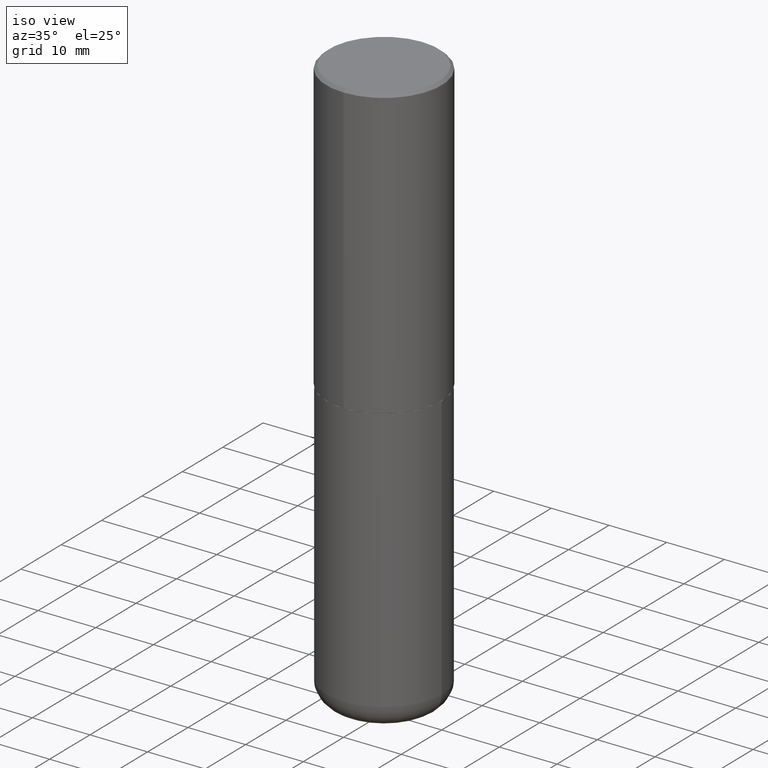
[diagram: clean part render]
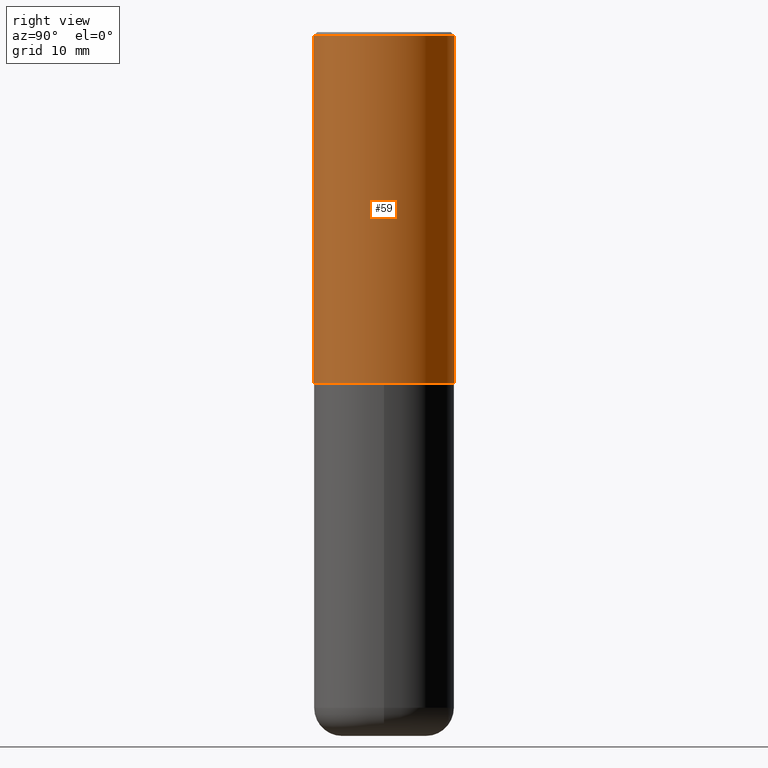
[diagram: tour spotlight — one face highlighted and labeled with its STEP entity id]
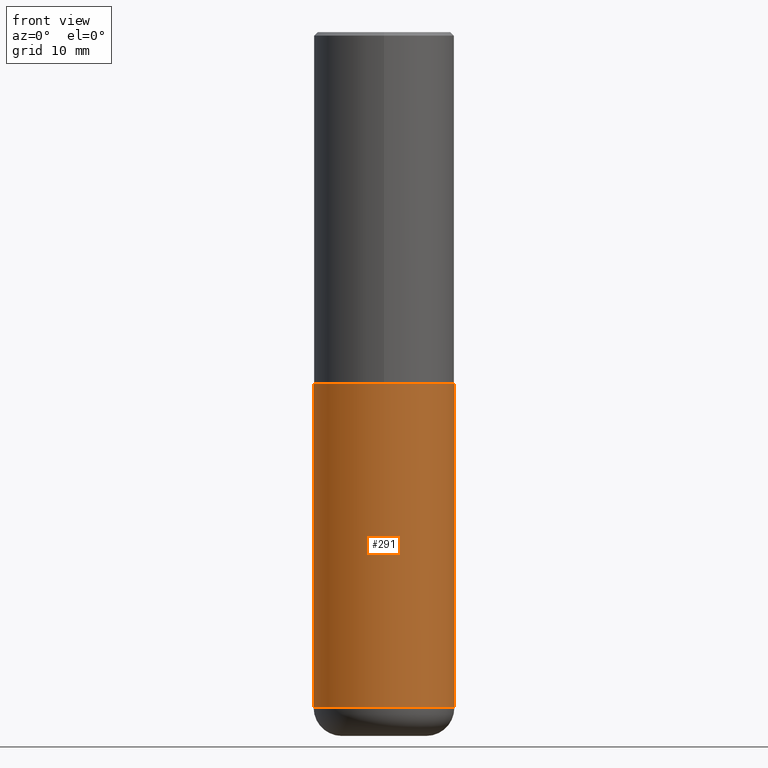
[diagram: tour spotlight — one face highlighted and labeled with its STEP entity id]
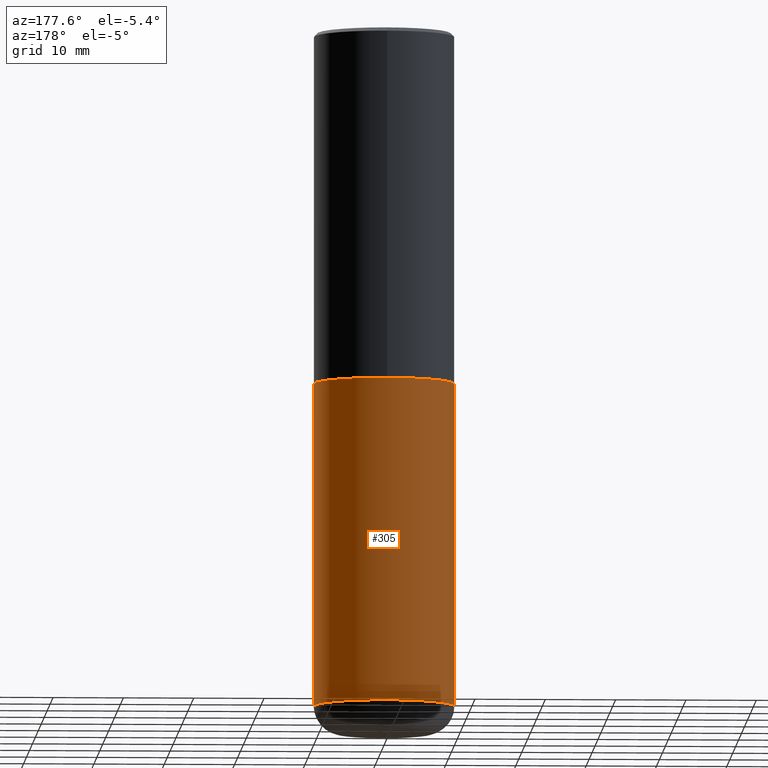
[diagram: tour spotlight — one face highlighted and labeled with its STEP entity id]
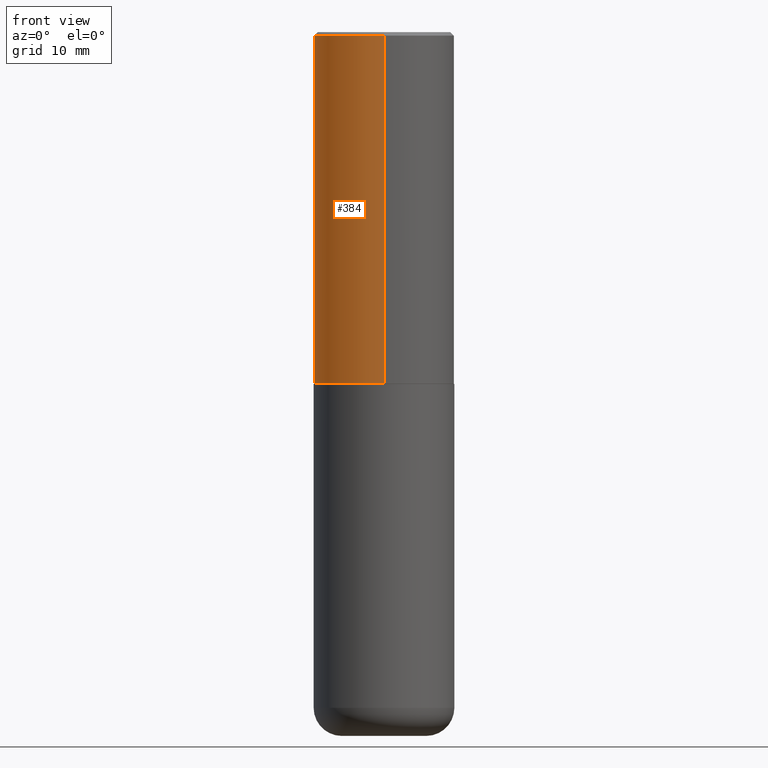
[diagram: tour spotlight — one face highlighted and labeled with its STEP entity id]
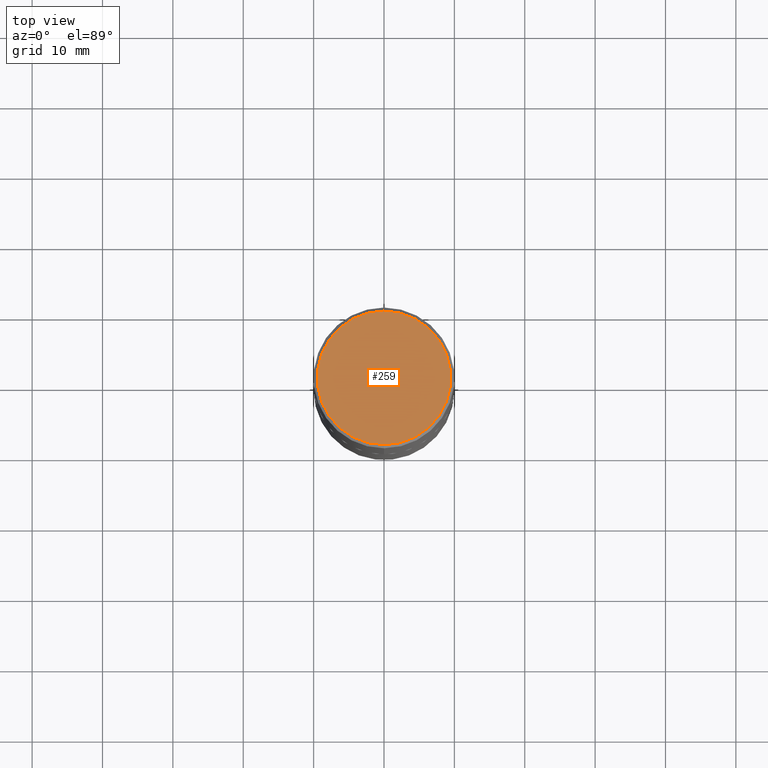
[diagram: tour spotlight — one face highlighted and labeled with its STEP entity id]
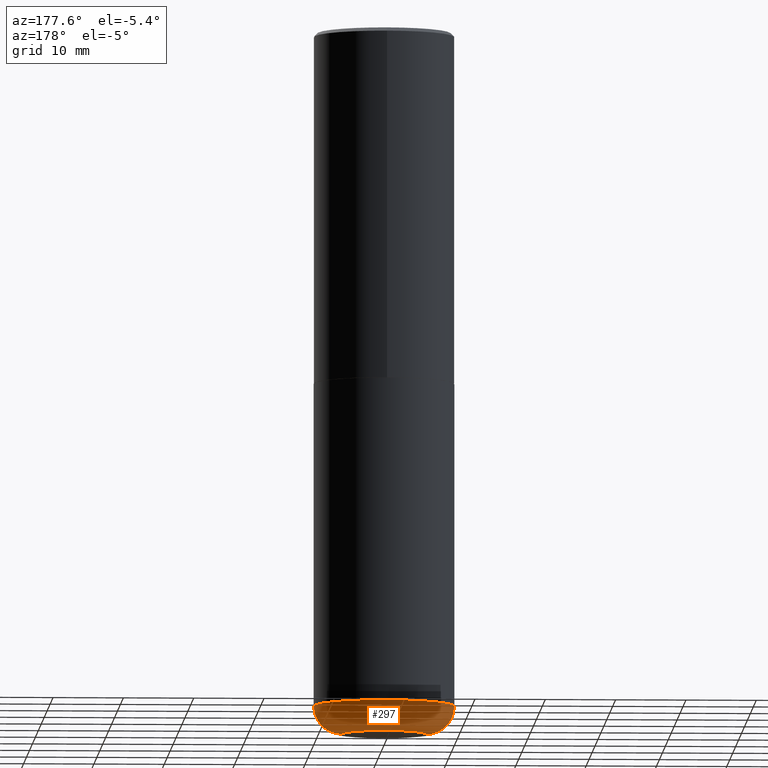
[diagram: tour spotlight — one face highlighted and labeled with its STEP entity id]
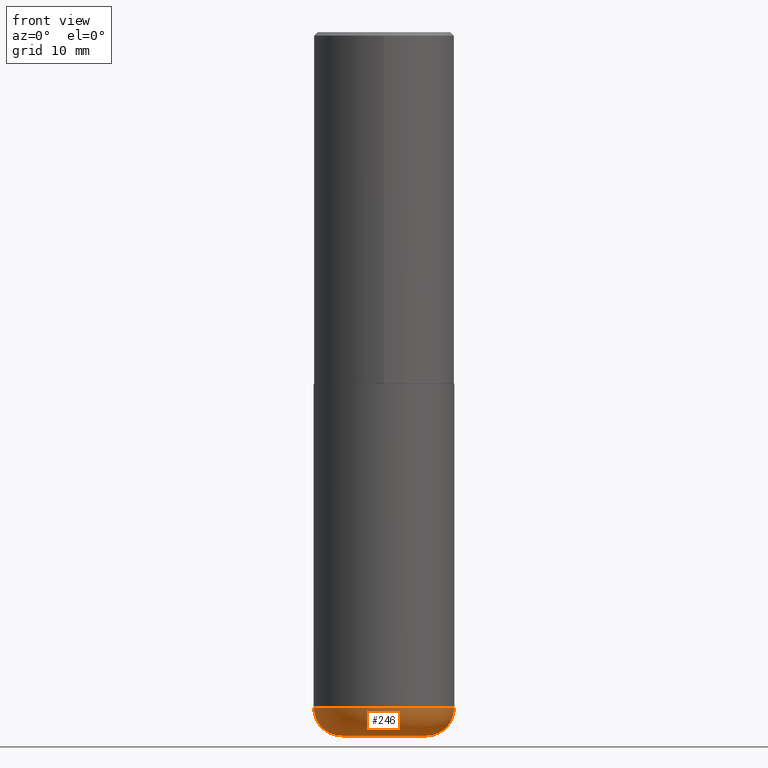
[diagram: tour spotlight — one face highlighted and labeled with its STEP entity id]
A machine part: a face-by-face anatomy tour. The part has 14 B-rep faces; the first image is the clean iso view, then the 7 largest visible faces are spotlighted one at a time (largest first), each with its STEP entity span.

Face 1 — right view, entity #59. In plain terms, the highlighted cylindrical surface (partial cylindrical patch) has radius 10 mm, axis along (-0, 0, 1).
Definition (entity closure, byte-faithful):
#1 = DIRECTION ( 'NONE',  ( -2.447902336346030930E-29, 3.487996385144809755E-15, 1.000000000000000000 ) ) ;
#17 = VERTEX_POINT ( 'NONE', #155 ) ;
#18 = CIRCLE ( 'NONE', #219, 0.3937000000000001054 ) ;
#33 = EDGE_CURVE ( 'NONE', #17, #266, #18, .T. ) ;
#41 = DIRECTION ( 'NONE',  ( -6.982962677686265922E-15, -1.000000000000000000, 3.487996385144809360E-15 ) ) ;
#57 = VERTEX_POINT ( 'NONE', #317 ) ;
#59 = ADVANCED_FACE ( 'NONE', ( #112 ), #211, .T. ) ;
#105 = ORIENTED_EDGE ( 'NONE', *, *, #110, .F. ) ;
#110 = EDGE_CURVE ( 'NONE', #132, #17, #278, .T. ) ;
#112 = FACE_OUTER_BOUND ( 'NONE', #380, .T. ) ;
#120 = EDGE_CURVE ( 'NONE', #57, #266, #357, .T. ) ;
#132 = VERTEX_POINT ( 'NONE', #390 ) ;
#136 = CARTESIAN_POINT ( 'NONE',  ( 2.749192406205084005E-15, 0.3937000000000000499, -0.02000000000000146105 ) ) ;
#155 = CARTESIAN_POINT ( 'NONE',  ( -2.700978061722651647E-15, -0.3937000000000001609, -0.01999999999999870978 ) ) ;
#181 = AXIS2_PLACEMENT_3D ( 'NONE', #298, #1, #241 ) ;
#194 = DIRECTION ( 'NONE',  ( -6.982962677686265133E-15, -1.000000000000000000, 3.491137977679279029E-15 ) ) ;
#211 = CYLINDRICAL_SURFACE ( 'NONE', #287, 0.3937000000000002164 ) ;
#214 = DIRECTION ( 'NONE',  ( -2.447902336346030930E-29, 3.487996385144809755E-15, 1.000000000000000000 ) ) ;
#219 = AXIS2_PLACEMENT_3D ( 'NONE', #283, #407, #194 ) ;
#229 = EDGE_CURVE ( 'NONE', #132, #57, #360, .T. ) ;
#241 = DIRECTION ( 'NONE',  ( -6.982962677686265922E-15, -1.000000000000000000, 3.469453890861393601E-15 ) ) ;
#255 = ORIENTED_EDGE ( 'NONE', *, *, #229, .T. ) ;
#266 = VERTEX_POINT ( 'NONE', #136 ) ;
#278 = LINE ( 'NONE', #413, #325 ) ;
#280 = ORIENTED_EDGE ( 'NONE', *, *, #33, .F. ) ;
#283 = CARTESIAN_POINT ( 'NONE',  ( 4.895804672692082949E-31, -6.975992770289649092E-17, -0.02000000000000008715 ) ) ;
#287 = AXIS2_PLACEMENT_3D ( 'NONE', #364, #214, #41 ) ;
#292 = DIRECTION ( 'NONE',  ( -2.447902336346030930E-29, 3.487996385144809360E-15, 1.000000000000000000 ) ) ;
#298 = CARTESIAN_POINT ( 'NONE',  ( 4.816247846760815671E-29, -6.862632887772413316E-15, -1.967500000000000027 ) ) ;
#317 = CARTESIAN_POINT ( 'NONE',  ( 2.797406750687540424E-15, 0.3936999999999934441, -1.967500000000001359 ) ) ;
#323 = CARTESIAN_POINT ( 'NONE',  ( 2.797406750687515575E-15, 0.3937000000000002164, -1.373224176831512262E-15 ) ) ;
#325 = VECTOR ( 'NONE', #350, 39.37007874015748143 ) ;
#350 = DIRECTION ( 'NONE',  ( -2.447902336346030930E-29, 3.487996385144809360E-15, 1.000000000000000000 ) ) ;
#357 = LINE ( 'NONE', #323, #411 ) ;
#360 = CIRCLE ( 'NONE', #181, 0.3937000000000002720 ) ;
#364 = CARTESIAN_POINT ( 'NONE',  ( 0.000000000000000000, 0.000000000000000000, 0.000000000000000000 ) ) ;
#380 = EDGE_LOOP ( 'NONE', ( #255, #415, #280, #105 ) ) ;
#390 = CARTESIAN_POINT ( 'NONE',  ( -2.749192406205036674E-15, -0.3937000000000070998, -1.967499999999998694 ) ) ;
#407 = DIRECTION ( 'NONE',  ( -2.447902336346030930E-29, 3.487996385144809755E-15, 1.000000000000000000 ) ) ;
#411 = VECTOR ( 'NONE', #292, 39.37007874015748143 ) ;
#413 = CARTESIAN_POINT ( 'NONE',  ( -2.749192406205084400E-15, -0.3937000000000002164, 1.373224176831512262E-15 ) ) ;
#415 = ORIENTED_EDGE ( 'NONE', *, *, #120, .T. ) ;

Face 2 — front view, entity #291. In plain terms, the highlighted cylindrical surface (partial cylindrical patch) has radius 10 mm, axis along (-0, 0, 1).
Definition (entity closure, byte-faithful):
#3 = CARTESIAN_POINT ( 'NONE',  ( -0.3936999999999999389, 2.797406750687513998E-15, -1.936584745033356455E-29 ) ) ;
#4 = LINE ( 'NONE', #3, #154 ) ;
#8 = VERTEX_POINT ( 'NONE', #328 ) ;
#27 = DIRECTION ( 'NONE',  ( 1.000000000000000000, -6.982962677686265133E-15, 0.000000000000000000 ) ) ;
#30 = CIRCLE ( 'NONE', #139, 0.3936999999999999389 ) ;
#32 = DIRECTION ( 'NONE',  ( -2.445468806185136877E-29, 3.491481338843145188E-15, 1.000000000000000000 ) ) ;
#53 = CIRCLE ( 'NONE', #300, 0.3937000000000000499 ) ;
#55 = ORIENTED_EDGE ( 'NONE', *, *, #156, .T. ) ;
#74 = VERTEX_POINT ( 'NONE', #369 ) ;
#77 = EDGE_CURVE ( 'NONE', #398, #8, #53, .T. ) ;
#99 = VECTOR ( 'NONE', #32, 39.37007874015748143 ) ;
#106 = CARTESIAN_POINT ( 'NONE',  ( -0.3937000000000000499, -7.237110617147687679E-15, -1.968500000000000139 ) ) ;
#113 = ORIENTED_EDGE ( 'NONE', *, *, #206, .T. ) ;
#134 = CARTESIAN_POINT ( 'NONE',  ( 0.3936999999999999389, -2.749192406205082822E-15, 1.919750796630859611E-29 ) ) ;
#139 = AXIS2_PLACEMENT_3D ( 'NONE', #199, #331, #27 ) ;
#142 = DIRECTION ( 'NONE',  ( -2.445468806185136877E-29, 3.491481338843145188E-15, 1.000000000000000000 ) ) ;
#145 = CARTESIAN_POINT ( 'NONE',  ( 4.813905344975441835E-29, -6.872981015512731707E-15, -1.968500000000000139 ) ) ;
#149 = ORIENTED_EDGE ( 'NONE', *, *, #370, .F. ) ;
#151 = ORIENTED_EDGE ( 'NONE', *, *, #77, .F. ) ;
#154 = VECTOR ( 'NONE', #142, 39.37007874015748143 ) ;
#156 = EDGE_CURVE ( 'NONE', #74, #324, #30, .T. ) ;
#199 = CARTESIAN_POINT ( 'NONE',  ( 9.242649352976724072E-29, -1.319605372015766849E-14, -3.779500000000000082 ) ) ;
#206 = EDGE_CURVE ( 'NONE', #324, #8, #358, .T. ) ;
#225 = DIRECTION ( 'NONE',  ( 1.000000000000000000, -6.982962677686265133E-15, 0.000000000000000000 ) ) ;
#250 = EDGE_LOOP ( 'NONE', ( #149, #55, #113, #151 ) ) ;
#277 = CARTESIAN_POINT ( 'NONE',  ( 0.3937000000000001609, -1.594524612636275171E-14, -3.779500000000000082 ) ) ;
#282 = AXIS2_PLACEMENT_3D ( 'NONE', #374, #309, #302 ) ;
#291 = ADVANCED_FACE ( 'NONE', ( #418 ), #335, .T. ) ;
#300 = AXIS2_PLACEMENT_3D ( 'NONE', #145, #345, #225 ) ;
#302 = DIRECTION ( 'NONE',  ( 1.000000000000000000, -6.982962677686266711E-15, 4.876176775795935793E-29 ) ) ;
#309 = DIRECTION ( 'NONE',  ( -2.445468806185136597E-29, 3.491481338843145583E-15, 1.000000000000000000 ) ) ;
#324 = VERTEX_POINT ( 'NONE', #277 ) ;
#328 = CARTESIAN_POINT ( 'NONE',  ( 0.3937000000000000499, -9.622173421717814924E-15, -1.968500000000000139 ) ) ;
#331 = DIRECTION ( 'NONE',  ( -2.445468806185136597E-29, 3.491481338843145583E-15, 1.000000000000000000 ) ) ;
#335 = CYLINDRICAL_SURFACE ( 'NONE', #282, 0.3936999999999999389 ) ;
#345 = DIRECTION ( 'NONE',  ( -2.445468806185136597E-29, 3.491481338843145583E-15, 1.000000000000000000 ) ) ;
#358 = LINE ( 'NONE', #134, #99 ) ;
#369 = CARTESIAN_POINT ( 'NONE',  ( -0.3937000000000001609, -1.039864696947015292E-14, -3.779500000000000082 ) ) ;
#370 = EDGE_CURVE ( 'NONE', #74, #398, #4, .T. ) ;
#374 = CARTESIAN_POINT ( 'NONE',  ( 0.000000000000000000, 0.000000000000000000, 0.000000000000000000 ) ) ;
#398 = VERTEX_POINT ( 'NONE', #106 ) ;
#418 = FACE_OUTER_BOUND ( 'NONE', #250, .T. ) ;

Face 3 — auxiliary view, entity #305. In plain terms, the highlighted cylindrical surface (partial cylindrical patch) has radius 10 mm, axis along (-0, 0, 1).
Definition (entity closure, byte-faithful):
#3 = CARTESIAN_POINT ( 'NONE',  ( -0.3936999999999999389, 2.797406750687513998E-15, -1.936584745033356455E-29 ) ) ;
#4 = LINE ( 'NONE', #3, #154 ) ;
#8 = VERTEX_POINT ( 'NONE', #328 ) ;
#19 = CIRCLE ( 'NONE', #240, 0.3936999999999999389 ) ;
#22 = ORIENTED_EDGE ( 'NONE', *, *, #321, .T. ) ;
#32 = DIRECTION ( 'NONE',  ( -2.445468806185136877E-29, 3.491481338843145188E-15, 1.000000000000000000 ) ) ;
#36 = CARTESIAN_POINT ( 'NONE',  ( 0.000000000000000000, 0.000000000000000000, 0.000000000000000000 ) ) ;
#40 = CARTESIAN_POINT ( 'NONE',  ( 4.813905344975441835E-29, -6.872981015512731707E-15, -1.968500000000000139 ) ) ;
#74 = VERTEX_POINT ( 'NONE', #369 ) ;
#75 = DIRECTION ( 'NONE',  ( 1.000000000000000000, -6.982962677686265133E-15, 0.000000000000000000 ) ) ;
#99 = VECTOR ( 'NONE', #32, 39.37007874015748143 ) ;
#106 = CARTESIAN_POINT ( 'NONE',  ( -0.3937000000000000499, -7.237110617147687679E-15, -1.968500000000000139 ) ) ;
#116 = EDGE_LOOP ( 'NONE', ( #22, #141, #385, #198 ) ) ;
#134 = CARTESIAN_POINT ( 'NONE',  ( 0.3936999999999999389, -2.749192406205082822E-15, 1.919750796630859611E-29 ) ) ;
#141 = ORIENTED_EDGE ( 'NONE', *, *, #370, .T. ) ;
#142 = DIRECTION ( 'NONE',  ( -2.445468806185136877E-29, 3.491481338843145188E-15, 1.000000000000000000 ) ) ;
#154 = VECTOR ( 'NONE', #142, 39.37007874015748143 ) ;
#174 = DIRECTION ( 'NONE',  ( 1.000000000000000000, -6.982962677686265133E-15, 0.000000000000000000 ) ) ;
#178 = DIRECTION ( 'NONE',  ( -2.445468806185136597E-29, 3.491481338843145583E-15, 1.000000000000000000 ) ) ;
#184 = AXIS2_PLACEMENT_3D ( 'NONE', #36, #267, #245 ) ;
#198 = ORIENTED_EDGE ( 'NONE', *, *, #206, .F. ) ;
#206 = EDGE_CURVE ( 'NONE', #324, #8, #358, .T. ) ;
#240 = AXIS2_PLACEMENT_3D ( 'NONE', #268, #373, #75 ) ;
#245 = DIRECTION ( 'NONE',  ( 1.000000000000000000, -6.982962677686266711E-15, 4.876176775795935793E-29 ) ) ;
#267 = DIRECTION ( 'NONE',  ( -2.445468806185136597E-29, 3.491481338843145583E-15, 1.000000000000000000 ) ) ;
#268 = CARTESIAN_POINT ( 'NONE',  ( 9.242649352976724072E-29, -1.319605372015766849E-14, -3.779500000000000082 ) ) ;
#277 = CARTESIAN_POINT ( 'NONE',  ( 0.3937000000000001609, -1.594524612636275171E-14, -3.779500000000000082 ) ) ;
#301 = AXIS2_PLACEMENT_3D ( 'NONE', #40, #178, #174 ) ;
#305 = ADVANCED_FACE ( 'NONE', ( #334 ), #365, .T. ) ;
#321 = EDGE_CURVE ( 'NONE', #324, #74, #19, .T. ) ;
#324 = VERTEX_POINT ( 'NONE', #277 ) ;
#328 = CARTESIAN_POINT ( 'NONE',  ( 0.3937000000000000499, -9.622173421717814924E-15, -1.968500000000000139 ) ) ;
#334 = FACE_OUTER_BOUND ( 'NONE', #116, .T. ) ;
#354 = CIRCLE ( 'NONE', #301, 0.3937000000000000499 ) ;
#358 = LINE ( 'NONE', #134, #99 ) ;
#365 = CYLINDRICAL_SURFACE ( 'NONE', #184, 0.3936999999999999389 ) ;
#369 = CARTESIAN_POINT ( 'NONE',  ( -0.3937000000000001609, -1.039864696947015292E-14, -3.779500000000000082 ) ) ;
#370 = EDGE_CURVE ( 'NONE', #74, #398, #4, .T. ) ;
#373 = DIRECTION ( 'NONE',  ( -2.445468806185136597E-29, 3.491481338843145583E-15, 1.000000000000000000 ) ) ;
#385 = ORIENTED_EDGE ( 'NONE', *, *, #409, .F. ) ;
#398 = VERTEX_POINT ( 'NONE', #106 ) ;
#409 = EDGE_CURVE ( 'NONE', #8, #398, #354, .T. ) ;

Face 4 — front view, entity #384. In plain terms, the highlighted cylindrical surface (partial cylindrical patch) has radius 10 mm, axis along (-0, 0, 1).
Definition (entity closure, byte-faithful):
#15 = DIRECTION ( 'NONE',  ( -2.447902336346030930E-29, 3.487996385144809755E-15, 1.000000000000000000 ) ) ;
#17 = VERTEX_POINT ( 'NONE', #155 ) ;
#34 = DIRECTION ( 'NONE',  ( -6.982962677686265133E-15, -1.000000000000000000, 3.491137977679279029E-15 ) ) ;
#57 = VERTEX_POINT ( 'NONE', #317 ) ;
#95 = DIRECTION ( 'NONE',  ( -6.982962677686265922E-15, -1.000000000000000000, 3.469453890861393601E-15 ) ) ;
#96 = DIRECTION ( 'NONE',  ( -2.447902336346030930E-29, 3.487996385144809755E-15, 1.000000000000000000 ) ) ;
#98 = CYLINDRICAL_SURFACE ( 'NONE', #228, 0.3937000000000002164 ) ;
#110 = EDGE_CURVE ( 'NONE', #132, #17, #278, .T. ) ;
#111 = CARTESIAN_POINT ( 'NONE',  ( 0.000000000000000000, 0.000000000000000000, 0.000000000000000000 ) ) ;
#120 = EDGE_CURVE ( 'NONE', #57, #266, #357, .T. ) ;
#124 = CIRCLE ( 'NONE', #239, 0.3937000000000002720 ) ;
#132 = VERTEX_POINT ( 'NONE', #390 ) ;
#136 = CARTESIAN_POINT ( 'NONE',  ( 2.749192406205084005E-15, 0.3937000000000000499, -0.02000000000000146105 ) ) ;
#137 = CARTESIAN_POINT ( 'NONE',  ( 4.816247846760815671E-29, -6.862632887772413316E-15, -1.967500000000000027 ) ) ;
#155 = CARTESIAN_POINT ( 'NONE',  ( -2.700978061722651647E-15, -0.3937000000000001609, -0.01999999999999870978 ) ) ;
#158 = ORIENTED_EDGE ( 'NONE', *, *, #169, .F. ) ;
#169 = EDGE_CURVE ( 'NONE', #266, #17, #377, .T. ) ;
#171 = EDGE_CURVE ( 'NONE', #57, #132, #124, .T. ) ;
#180 = ORIENTED_EDGE ( 'NONE', *, *, #120, .F. ) ;
#228 = AXIS2_PLACEMENT_3D ( 'NONE', #111, #15, #276 ) ;
#238 = DIRECTION ( 'NONE',  ( -2.447902336346030930E-29, 3.487996385144809755E-15, 1.000000000000000000 ) ) ;
#239 = AXIS2_PLACEMENT_3D ( 'NONE', #137, #238, #95 ) ;
#251 = ORIENTED_EDGE ( 'NONE', *, *, #110, .T. ) ;
#253 = ORIENTED_EDGE ( 'NONE', *, *, #171, .T. ) ;
#264 = FACE_OUTER_BOUND ( 'NONE', #349, .T. ) ;
#266 = VERTEX_POINT ( 'NONE', #136 ) ;
#276 = DIRECTION ( 'NONE',  ( -6.982962677686265922E-15, -1.000000000000000000, 3.487996385144809360E-15 ) ) ;
#278 = LINE ( 'NONE', #413, #325 ) ;
#292 = DIRECTION ( 'NONE',  ( -2.447902336346030930E-29, 3.487996385144809360E-15, 1.000000000000000000 ) ) ;
#312 = AXIS2_PLACEMENT_3D ( 'NONE', #333, #96, #34 ) ;
#317 = CARTESIAN_POINT ( 'NONE',  ( 2.797406750687540424E-15, 0.3936999999999934441, -1.967500000000001359 ) ) ;
#323 = CARTESIAN_POINT ( 'NONE',  ( 2.797406750687515575E-15, 0.3937000000000002164, -1.373224176831512262E-15 ) ) ;
#325 = VECTOR ( 'NONE', #350, 39.37007874015748143 ) ;
#333 = CARTESIAN_POINT ( 'NONE',  ( 4.895804672692082949E-31, -6.975992770289649092E-17, -0.02000000000000008715 ) ) ;
#349 = EDGE_LOOP ( 'NONE', ( #180, #253, #251, #158 ) ) ;
#350 = DIRECTION ( 'NONE',  ( -2.447902336346030930E-29, 3.487996385144809360E-15, 1.000000000000000000 ) ) ;
#357 = LINE ( 'NONE', #323, #411 ) ;
#377 = CIRCLE ( 'NONE', #312, 0.3937000000000001054 ) ;
#384 = ADVANCED_FACE ( 'NONE', ( #264 ), #98, .T. ) ;
#390 = CARTESIAN_POINT ( 'NONE',  ( -2.749192406205036674E-15, -0.3937000000000070998, -1.967499999999998694 ) ) ;
#411 = VECTOR ( 'NONE', #292, 39.37007874015748143 ) ;
#413 = CARTESIAN_POINT ( 'NONE',  ( -2.749192406205084400E-15, -0.3937000000000002164, 1.373224176831512262E-15 ) ) ;

Face 5 — top view, entity #259. In plain terms, the highlighted planar face has unit normal (0, -0, -1).
Definition (entity closure, byte-faithful):
#26 = DIRECTION ( 'NONE',  ( 2.447902336346030930E-29, -3.487996385144809360E-15, -1.000000000000000000 ) ) ;
#38 = AXIS2_PLACEMENT_3D ( 'NONE', #118, #97, #299 ) ;
#42 = EDGE_LOOP ( 'NONE', ( #379, #371 ) ) ;
#43 = EDGE_CURVE ( 'NONE', #383, #223, #62, .T. ) ;
#62 = CIRCLE ( 'NONE', #38, 0.3736999999999999211 ) ;
#97 = DIRECTION ( 'NONE',  ( -2.447902336346030930E-29, 3.487996385144809755E-15, 1.000000000000000000 ) ) ;
#100 = CARTESIAN_POINT ( 'NONE',  ( 2.679362779428220707E-15, 0.3736999999999999211, -1.078535414350361218E-15 ) ) ;
#102 = CARTESIAN_POINT ( 'NONE',  ( -2.632373081744936315E-15, -0.3736999999999999211, 1.528393083906868747E-15 ) ) ;
#118 = CARTESIAN_POINT ( 'NONE',  ( -5.506038201652776757E-45, 7.845509626213831500E-31, 2.249288347782537153E-16 ) ) ;
#138 = DIRECTION ( 'NONE',  ( -6.982962677686265133E-15, -1.000000000000000000, 3.487996385144809755E-15 ) ) ;
#173 = CARTESIAN_POINT ( 'NONE',  ( -5.506038201652776757E-45, 7.845509626213831500E-31, 2.249288347782537153E-16 ) ) ;
#186 = PLANE ( 'NONE',  #366 ) ;
#188 = FACE_OUTER_BOUND ( 'NONE', #42, .T. ) ;
#218 = DIRECTION ( 'NONE',  ( 6.982962677686265922E-15, 1.000000000000000000, -3.487996385144809360E-15 ) ) ;
#223 = VERTEX_POINT ( 'NONE', #100 ) ;
#259 = ADVANCED_FACE ( 'NONE', ( #188 ), #186, .F. ) ;
#299 = DIRECTION ( 'NONE',  ( -6.982962677686265133E-15, -1.000000000000000000, 3.487996385144809755E-15 ) ) ;
#303 = DIRECTION ( 'NONE',  ( -2.447902336346030930E-29, 3.487996385144809755E-15, 1.000000000000000000 ) ) ;
#315 = CARTESIAN_POINT ( 'NONE',  ( 2.609533152651356620E-15, 0.3736999999999999211, -1.190999831739488445E-15 ) ) ;
#337 = AXIS2_PLACEMENT_3D ( 'NONE', #173, #303, #138 ) ;
#346 = EDGE_CURVE ( 'NONE', #223, #383, #395, .T. ) ;
#366 = AXIS2_PLACEMENT_3D ( 'NONE', #315, #26, #218 ) ;
#371 = ORIENTED_EDGE ( 'NONE', *, *, #43, .T. ) ;
#379 = ORIENTED_EDGE ( 'NONE', *, *, #346, .T. ) ;
#383 = VERTEX_POINT ( 'NONE', #102 ) ;
#395 = CIRCLE ( 'NONE', #337, 0.3736999999999999211 ) ;

Face 6 — auxiliary view, entity #297. In plain terms, the highlighted toroidal blend (fillet) surface has major radius 5.9995 mm and minor (blend) radius 4.0005 mm.
Definition (entity closure, byte-faithful):
#5 = FACE_OUTER_BOUND ( 'NONE', #20, .T. ) ;
#19 = CIRCLE ( 'NONE', #240, 0.3936999999999999389 ) ;
#20 = EDGE_LOOP ( 'NONE', ( #44, #86, #200, #47 ) ) ;
#31 = CIRCLE ( 'NONE', #78, 0.1575000000000003342 ) ;
#35 = DIRECTION ( 'NONE',  ( -6.982962677686266711E-15, -1.000000000000000000, 3.491481338843145583E-15 ) ) ;
#44 = ORIENTED_EDGE ( 'NONE', *, *, #263, .T. ) ;
#47 = ORIENTED_EDGE ( 'NONE', *, *, #341, .F. ) ;
#56 = VERTEX_POINT ( 'NONE', #68 ) ;
#68 = CARTESIAN_POINT ( 'NONE',  ( 0.2362000000000000766, -1.539533781549496310E-14, -3.937000000000000721 ) ) ;
#72 = CARTESIAN_POINT ( 'NONE',  ( 9.242649352976724072E-29, -1.319605372015766849E-14, -3.779500000000000082 ) ) ;
#74 = VERTEX_POINT ( 'NONE', #369 ) ;
#75 = DIRECTION ( 'NONE',  ( 1.000000000000000000, -6.982962677686265133E-15, 0.000000000000000000 ) ) ;
#78 = AXIS2_PLACEMENT_3D ( 'NONE', #117, #35, #212 ) ;
#86 = ORIENTED_EDGE ( 'NONE', *, *, #147, .T. ) ;
#101 = CARTESIAN_POINT ( 'NONE',  ( 9.627810689950884790E-29, -1.374596203102546657E-14, -3.937000000000000721 ) ) ;
#103 = DIRECTION ( 'NONE',  ( 1.000000000000000000, -6.982962677686266711E-15, 4.883557194083112340E-29 ) ) ;
#117 = CARTESIAN_POINT ( 'NONE',  ( 0.2362000000000000210, -1.484542950462716502E-14, -3.779500000000000082 ) ) ;
#147 = EDGE_CURVE ( 'NONE', #226, #74, #397, .T. ) ;
#183 = DIRECTION ( 'NONE',  ( -2.445468806185136597E-29, 3.491481338843145583E-15, 1.000000000000000000 ) ) ;
#192 = CIRCLE ( 'NONE', #417, 0.2362000000000000766 ) ;
#200 = ORIENTED_EDGE ( 'NONE', *, *, #321, .F. ) ;
#210 = TOROIDAL_SURFACE ( 'NONE', #412, 0.2362000000000000210, 0.1575000000000003064 ) ;
#212 = DIRECTION ( 'NONE',  ( 1.000000000000000000, -6.982962677686271444E-15, 0.000000000000000000 ) ) ;
#226 = VERTEX_POINT ( 'NONE', #361 ) ;
#240 = AXIS2_PLACEMENT_3D ( 'NONE', #268, #373, #75 ) ;
#263 = EDGE_CURVE ( 'NONE', #56, #226, #192, .T. ) ;
#265 = DIRECTION ( 'NONE',  ( -2.445468806185136597E-29, 3.491481338843145583E-15, 1.000000000000000000 ) ) ;
#268 = CARTESIAN_POINT ( 'NONE',  ( 9.242649352976724072E-29, -1.319605372015766849E-14, -3.779500000000000082 ) ) ;
#277 = CARTESIAN_POINT ( 'NONE',  ( 0.3937000000000001609, -1.594524612636275171E-14, -3.779500000000000082 ) ) ;
#281 = AXIS2_PLACEMENT_3D ( 'NONE', #289, #293, #356 ) ;
#289 = CARTESIAN_POINT ( 'NONE',  ( -0.2362000000000000210, -1.151775177829231210E-14, -3.779500000000000082 ) ) ;
#293 = DIRECTION ( 'NONE',  ( 7.105427357601001859E-15, 1.000000000000000000, -3.491481338843145583E-15 ) ) ;
#297 = ADVANCED_FACE ( 'NONE', ( #5 ), #210, .T. ) ;
#321 = EDGE_CURVE ( 'NONE', #324, #74, #19, .T. ) ;
#324 = VERTEX_POINT ( 'NONE', #277 ) ;
#339 = DIRECTION ( 'NONE',  ( 1.000000000000000000, -6.982962677686270655E-15, 0.000000000000000000 ) ) ;
#341 = EDGE_CURVE ( 'NONE', #56, #324, #31, .T. ) ;
#356 = DIRECTION ( 'NONE',  ( -1.000000000000000000, 7.105427357601006592E-15, 0.000000000000000000 ) ) ;
#361 = CARTESIAN_POINT ( 'NONE',  ( -0.2362000000000000766, -1.123315352931513155E-14, -3.937000000000000721 ) ) ;
#369 = CARTESIAN_POINT ( 'NONE',  ( -0.3937000000000001609, -1.039864696947015292E-14, -3.779500000000000082 ) ) ;
#373 = DIRECTION ( 'NONE',  ( -2.445468806185136597E-29, 3.491481338843145583E-15, 1.000000000000000000 ) ) ;
#397 = CIRCLE ( 'NONE', #281, 0.1575000000000003342 ) ;
#412 = AXIS2_PLACEMENT_3D ( 'NONE', #72, #265, #103 ) ;
#417 = AXIS2_PLACEMENT_3D ( 'NONE', #101, #183, #339 ) ;

Face 7 — front view, entity #246. In plain terms, the highlighted toroidal blend (fillet) surface has major radius 5.9995 mm and minor (blend) radius 4.0005 mm.
Definition (entity closure, byte-faithful):
#9 = FACE_OUTER_BOUND ( 'NONE', #177, .T. ) ;
#13 = DIRECTION ( 'NONE',  ( -2.445468806185136597E-29, 3.491481338843145583E-15, 1.000000000000000000 ) ) ;
#27 = DIRECTION ( 'NONE',  ( 1.000000000000000000, -6.982962677686265133E-15, 0.000000000000000000 ) ) ;
#30 = CIRCLE ( 'NONE', #139, 0.3936999999999999389 ) ;
#31 = CIRCLE ( 'NONE', #78, 0.1575000000000003342 ) ;
#35 = DIRECTION ( 'NONE',  ( -6.982962677686266711E-15, -1.000000000000000000, 3.491481338843145583E-15 ) ) ;
#56 = VERTEX_POINT ( 'NONE', #68 ) ;
#61 = EDGE_CURVE ( 'NONE', #226, #56, #393, .T. ) ;
#66 = AXIS2_PLACEMENT_3D ( 'NONE', #318, #284, #84 ) ;
#68 = CARTESIAN_POINT ( 'NONE',  ( 0.2362000000000000766, -1.539533781549496310E-14, -3.937000000000000721 ) ) ;
#74 = VERTEX_POINT ( 'NONE', #369 ) ;
#78 = AXIS2_PLACEMENT_3D ( 'NONE', #117, #35, #212 ) ;
#84 = DIRECTION ( 'NONE',  ( 1.000000000000000000, -6.982962677686266711E-15, 4.883557194083112340E-29 ) ) ;
#117 = CARTESIAN_POINT ( 'NONE',  ( 0.2362000000000000210, -1.484542950462716502E-14, -3.779500000000000082 ) ) ;
#139 = AXIS2_PLACEMENT_3D ( 'NONE', #199, #331, #27 ) ;
#147 = EDGE_CURVE ( 'NONE', #226, #74, #397, .T. ) ;
#153 = TOROIDAL_SURFACE ( 'NONE', #66, 0.2362000000000000210, 0.1575000000000003064 ) ;
#156 = EDGE_CURVE ( 'NONE', #74, #324, #30, .T. ) ;
#168 = AXIS2_PLACEMENT_3D ( 'NONE', #175, #13, #279 ) ;
#175 = CARTESIAN_POINT ( 'NONE',  ( 9.627810689950884790E-29, -1.374596203102546657E-14, -3.937000000000000721 ) ) ;
#177 = EDGE_LOOP ( 'NONE', ( #244, #408, #231, #414 ) ) ;
#199 = CARTESIAN_POINT ( 'NONE',  ( 9.242649352976724072E-29, -1.319605372015766849E-14, -3.779500000000000082 ) ) ;
#212 = DIRECTION ( 'NONE',  ( 1.000000000000000000, -6.982962677686271444E-15, 0.000000000000000000 ) ) ;
#226 = VERTEX_POINT ( 'NONE', #361 ) ;
#231 = ORIENTED_EDGE ( 'NONE', *, *, #341, .T. ) ;
#244 = ORIENTED_EDGE ( 'NONE', *, *, #147, .F. ) ;
#246 = ADVANCED_FACE ( 'NONE', ( #9 ), #153, .T. ) ;
#277 = CARTESIAN_POINT ( 'NONE',  ( 0.3937000000000001609, -1.594524612636275171E-14, -3.779500000000000082 ) ) ;
#279 = DIRECTION ( 'NONE',  ( 1.000000000000000000, -6.982962677686270655E-15, 0.000000000000000000 ) ) ;
#281 = AXIS2_PLACEMENT_3D ( 'NONE', #289, #293, #356 ) ;
#284 = DIRECTION ( 'NONE',  ( -2.445468806185136597E-29, 3.491481338843145583E-15, 1.000000000000000000 ) ) ;
#289 = CARTESIAN_POINT ( 'NONE',  ( -0.2362000000000000210, -1.151775177829231210E-14, -3.779500000000000082 ) ) ;
#293 = DIRECTION ( 'NONE',  ( 7.105427357601001859E-15, 1.000000000000000000, -3.491481338843145583E-15 ) ) ;
#318 = CARTESIAN_POINT ( 'NONE',  ( 9.242649352976724072E-29, -1.319605372015766849E-14, -3.779500000000000082 ) ) ;
#324 = VERTEX_POINT ( 'NONE', #277 ) ;
#331 = DIRECTION ( 'NONE',  ( -2.445468806185136597E-29, 3.491481338843145583E-15, 1.000000000000000000 ) ) ;
#341 = EDGE_CURVE ( 'NONE', #56, #324, #31, .T. ) ;
#356 = DIRECTION ( 'NONE',  ( -1.000000000000000000, 7.105427357601006592E-15, 0.000000000000000000 ) ) ;
#361 = CARTESIAN_POINT ( 'NONE',  ( -0.2362000000000000766, -1.123315352931513155E-14, -3.937000000000000721 ) ) ;
#369 = CARTESIAN_POINT ( 'NONE',  ( -0.3937000000000001609, -1.039864696947015292E-14, -3.779500000000000082 ) ) ;
#393 = CIRCLE ( 'NONE', #168, 0.2362000000000000766 ) ;
#397 = CIRCLE ( 'NONE', #281, 0.1575000000000003342 ) ;
#408 = ORIENTED_EDGE ( 'NONE', *, *, #61, .T. ) ;
#414 = ORIENTED_EDGE ( 'NONE', *, *, #156, .F. ) ;